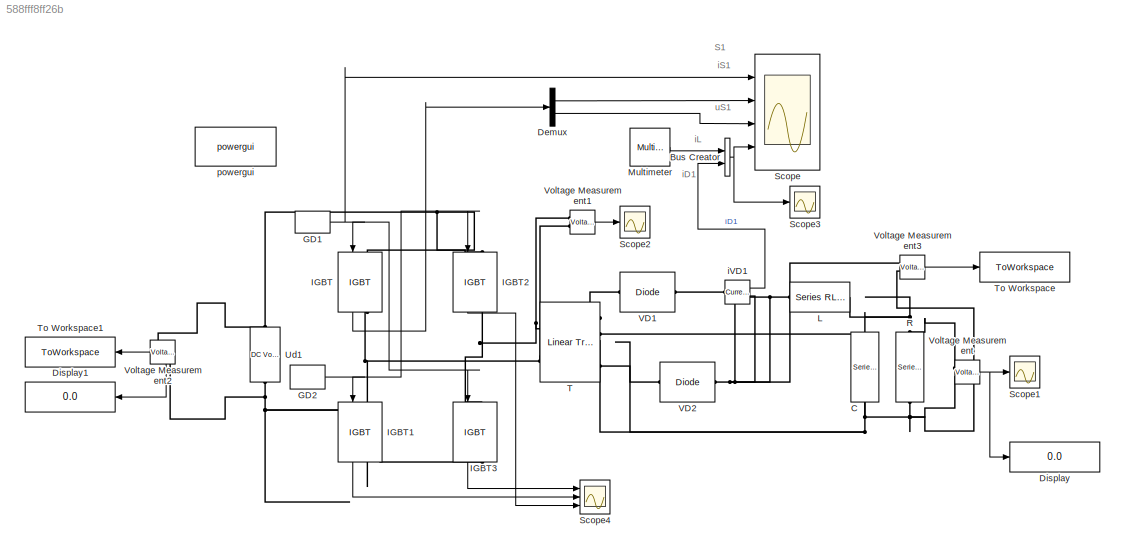
MODEL slx_588fff8ff26b
KIND model
CONFIG AbsTol = auto
CONFIG EnableMultiTasking = off
CONFIG FixedStep = auto
CONFIG MaxStep = auto
CONFIG MinStep = auto
CONFIG RelTol = 1e-3
CONFIG SampleTimeConstraint = Unconstrained
CONFIG Solver = VariableStepAuto
CONFIG SolverName = VariableStepAuto
CONFIG StartTime = 0.0
CONFIG StopTime = 10.0
BLOCK [BusCreator] Bus Creator
  DialogController = Simulink.DDGSource_Bus
  DisplayOption = bar
  InheritFromInputs = on
  Inputs = 2
  Ports = [2, 1]
BLOCK [Reference] C  REF=powerlib/Elements/Series RLC Branch
  Ports = [0, 0, 0, 0, 0, 1, 1]
  SourceBlock = powerlib/Elements/Series RLC Branch
  SourceProductBaseCode = PS
  SourceProductName = Simscape Electrical
  SourceType = Series RLC Branch
BLOCK [Demux] Demux
  DisplayOption = bar
  Outputs = 2
  Ports = [1, 2]
BLOCK [Display] Display
  Decimation = 1
  Ports = [1]
BLOCK [Display] Display1
  Decimation = 1
  Ports = [1]
BLOCK [DiscretePulseGenerator] GD1
  Period = 1e-5
  Ports = [0, 1]
  PulseType = Time based
  PulseWidth = tem1
BLOCK [DiscretePulseGenerator] GD2
  Period = 1e-5
  PhaseDelay = 5e-6
  Ports = [0, 1]
  PulseType = Time based
  PulseWidth = tem2
BLOCK [Reference] IGBT  REF=powerlib/Power
Electronics/IGBT
  Ports = [1, 1, 0, 0, 0, 1, 1]
  SourceBlock = powerlib/Power\nElectronics/IGBT
  SourceProductBaseCode = PS
  SourceProductName = Simscape Electrical
  SourceType = IGBT
BLOCK [Reference] IGBT1  REF=powerlib/Power
Electronics/IGBT
  Ports = [1, 1, 0, 0, 0, 1, 1]
  SourceBlock = powerlib/Power\nElectronics/IGBT
  SourceProductBaseCode = PS
  SourceProductName = Simscape Electrical
  SourceType = IGBT
BLOCK [Reference] IGBT2  REF=powerlib/Power
Electronics/IGBT
  Ports = [1, 1, 0, 0, 0, 1, 1]
  SourceBlock = powerlib/Power\nElectronics/IGBT
  SourceProductBaseCode = PS
  SourceProductName = Simscape Electrical
  SourceType = IGBT
BLOCK [Reference] IGBT3  REF=powerlib/Power
Electronics/IGBT
  Ports = [1, 1, 0, 0, 0, 1, 1]
  SourceBlock = powerlib/Power\nElectronics/IGBT
  SourceProductBaseCode = PS
  SourceProductName = Simscape Electrical
  SourceType = IGBT
BLOCK [Reference] L  REF=powerlib/Elements/Series RLC Branch
  Ports = [0, 0, 0, 0, 0, 1, 1]
  SourceBlock = powerlib/Elements/Series RLC Branch
  SourceProductBaseCode = PS
  SourceProductName = Simscape Electrical
  SourceType = Series RLC Branch
BLOCK [Reference] Multimeter  REF=powerlib/Measurements/Multimeter
  Ports = [0, 1]
  SourceBlock = powerlib/Measurements/Multimeter
  SourceProductBaseCode = PS
  SourceProductName = Simscape Electrical
  SourceType = MultimeterPSB
BLOCK [Reference] R  REF=powerlib/Elements/Series RLC Branch
  Ports = [0, 0, 0, 0, 0, 1, 1]
  SourceBlock = powerlib/Elements/Series RLC Branch
  SourceProductBaseCode = PS
  SourceProductName = Simscape Electrical
  SourceType = Series RLC Branch
BLOCK [Scope] Scope
  Floating = off
  NumInputPorts = 4
  Ports = [4]
  ScopeSpecificationString = Simulink.scopes.TimeScopeBlockCfg('CurrentConfiguration', extmgr.ConfigurationSet(extmgr.Configuration('Core','General UI',true,'FigureColor',[1 1 1]),extmgr.Configuration('Core','Source UI',true),extmgr.Configuration('Sources','WiredSimulink',true,'DataLoggingSaveFormat','StructureWithTime','DataLoggingDecimation','1','DataLoggingDecimateData',true,'SampleTime','1e-7','DataLogging',true,'DataLogg...<+4313ch>
BLOCK [Scope] Scope1
  Floating = off
  NumInputPorts = 1
  Ports = [1]
  ScopeSpecificationString = Simulink.scopes.TimeScopeBlockCfg('CurrentConfiguration', extmgr.ConfigurationSet(extmgr.Configuration('Core','General UI',true,'FigureColor',[1 1 1]),extmgr.Configuration('Core','Source UI',true),extmgr.Configuration('Sources','WiredSimulink',true,'DataLoggingVariableName','ScopeData3','DataLogging',true,'DataLoggingSaveFormat','StructureWithTime','SampleTime','1e-7'),extmgr.Configuration('Visual...<+1640ch>
BLOCK [Scope] Scope2
  Floating = off
  NumInputPorts = 1
  Ports = [1]
  ScopeSpecificationString = Simulink.scopes.TimeScopeBlockCfg('CurrentConfiguration', extmgr.ConfigurationSet(extmgr.Configuration('Core','General UI',true,'FigureColor',[1 1 1]),extmgr.Configuration('Core','Source UI',true),extmgr.Configuration('Sources','WiredSimulink',true,'SampleTime','1e-7','DataLoggingVariableName','ScopeData4'),extmgr.Configuration('Visuals','Time Domain',true,'SerializedDisplays',{struct('MinYLimReal...<+1623ch>
BLOCK [Scope] Scope3
  Floating = off
  NumInputPorts = 1
  Ports = [1]
  ScopeSpecificationString = Simulink.scopes.TimeScopeBlockCfg('CurrentConfiguration', extmgr.ConfigurationSet(extmgr.Configuration('Core','General UI',true,'FigureColor',[1 1 1]),extmgr.Configuration('Core','Source UI',true),extmgr.Configuration('Sources','WiredSimulink',true,'SampleTime','1e-7'),extmgr.Configuration('Visuals','Time Domain',true,'SerializedDisplays',{struct('MinYLimReal','0','MaxYLimReal','1','YLabelReal',''...<+1697ch>
BLOCK [Scope] Scope4
  Floating = off
  NumInputPorts = 3
  Ports = [3]
  ScopeSpecificationString = Simulink.scopes.TimeScopeBlockCfg('CurrentConfiguration', extmgr.ConfigurationSet(extmgr.Configuration('Core','General UI',true,'FigureColor',[1 1 1]),extmgr.Configuration('Core','Source UI',true),extmgr.Configuration('Sources','WiredSimulink',true,'SampleTime','1e-7','DataLoggingVariableName','ScopeData1'),extmgr.Configuration('Visuals','Time Domain',true,'SerializedDisplays',{struct('MinYLimReal...<+1736ch>
BLOCK [Reference] T  REF=powerlib/Elements/Linear Transformer
  Ports = [0, 0, 0, 0, 0, 2, 4]
  SourceBlock = powerlib/Elements/Linear Transformer
  SourceProductBaseCode = PS
  SourceProductName = Simscape Electrical
  SourceType = Linear Transformer
BLOCK [ToWorkspace] To Workspace
  FixptAsFi = on
  MaxDataPoints = inf
  Ports = [1]
  SampleTime = -1
  Save2DSignal = 2-D array (concatenate along first dimension)
  VariableName = Uo
BLOCK [ToWorkspace] To Workspace1
  FixptAsFi = on
  MaxDataPoints = inf
  Ports = [1]
  SampleTime = -1
  Save2DSignal = 2-D array (concatenate along first dimension)
  VariableName = Uin
BLOCK [Reference] Ud1  REF=powerlib/Electrical
Sources/DC Voltage Source
  Ports = [0, 0, 0, 0, 0, 1, 1]
  SourceBlock = powerlib/Electrical\nSources/DC Voltage Source
  SourceProductBaseCode = PS
  SourceProductName = Simscape Electrical
  SourceType = DC Voltage Source
BLOCK [Reference] VD1  REF=powerlib/Power
Electronics/Diode
  Ports = [0, 0, 0, 0, 0, 1, 1]
  SourceBlock = powerlib/Power\nElectronics/Diode
  SourceProductBaseCode = PS
  SourceProductName = Simscape Electrical
  SourceType = Diode
BLOCK [Reference] VD2  REF=powerlib/Power
Electronics/Diode
  Ports = [0, 0, 0, 0, 0, 1, 1]
  SourceBlock = powerlib/Power\nElectronics/Diode
  SourceProductBaseCode = PS
  SourceProductName = Simscape Electrical
  SourceType = Diode
BLOCK [Reference] Voltage Measurement  REF=powerlib/Measurements/Voltage Measurement
  Ports = [0, 1, 0, 0, 0, 2]
  SourceBlock = powerlib/Measurements/Voltage Measurement
  SourceProductBaseCode = PS
  SourceProductName = Simscape Electrical
  SourceType = Voltage Measurement
  UserDataPersistent = on
BLOCK [Reference] Voltage Measurement1  REF=powerlib/Measurements/Voltage Measurement
  Ports = [0, 1, 0, 0, 0, 2]
  SourceBlock = powerlib/Measurements/Voltage Measurement
  SourceProductBaseCode = PS
  SourceProductName = Simscape Electrical
  SourceType = Voltage Measurement
  UserDataPersistent = on
BLOCK [Reference] Voltage Measurement2  REF=powerlib/Measurements/Voltage Measurement
  Ports = [0, 1, 0, 0, 0, 2]
  SourceBlock = powerlib/Measurements/Voltage Measurement
  SourceProductBaseCode = PS
  SourceProductName = Simscape Electrical
  SourceType = Voltage Measurement
  UserDataPersistent = on
BLOCK [Reference] Voltage Measurement3  REF=powerlib/Measurements/Voltage Measurement
  Ports = [0, 1, 0, 0, 0, 2]
  SourceBlock = powerlib/Measurements/Voltage Measurement
  SourceProductBaseCode = PS
  SourceProductName = Simscape Electrical
  SourceType = Voltage Measurement
  UserDataPersistent = on
BLOCK [Reference] iVD1  REF=powerlib/Measurements/Current Measurement
  Ports = [0, 1, 0, 0, 0, 1, 1]
  SourceBlock = powerlib/Measurements/Current Measurement
  SourceProductBaseCode = PS
  SourceProductName = Simscape Electrical
  SourceType = Current Measurement
BLOCK [Reference] powergui  REF=powerlib/powergui
  Ports = []
  Priority = 1
  SourceBlock = powerlib/powergui
  SourceProductBaseCode = PS
  SourceProductName = Simscape Electrical
  SourceType = PSB option menu block
ANNOTATION (root): S1
ANNOTATION (root): iD1
ANNOTATION (root): iL
ANNOTATION (root): iS1
ANNOTATION (root): uS1
NET Bus Creator:1 -> Scope3:1, Scope:4
LINE Demux:1 -> Scope:2
LINE Demux:2 -> Scope:3
NET GD1:1 -> IGBT3:1, IGBT:1, Scope:1
NET GD2:1 -> IGBT1:1, IGBT2:1
LINE IGBT1:1 -> Scope4:2
LINE IGBT2:1 -> Scope4:3
LINE IGBT3:1 -> Scope4:1
LINE IGBT:1 -> Demux:1
LINE Multimeter:1 -> Bus Creator:1
LINE Voltage Measurement1:1 -> Scope2:1
NET Voltage Measurement2:1 -> Display1:1, To Workspace1:1
LINE Voltage Measurement3:1 -> To Workspace:1
NET Voltage Measurement:1 -> Display:1, Scope1:1
LINE iVD1:1 -> Bus Creator:2
PNET net1: C:LConn1 -- L:RConn1 -- R:LConn1 -- Voltage Measurement:LConn1
PNET net2: C:RConn1 -- R:RConn1 -- T:RConn2 -- T:RConn3 -- Voltage Measurement3:LConn2 -- Voltage Measurement:LConn2
PNET net3: IGBT1:LConn1 -- IGBT:RConn1 -- T:LConn2 -- Voltage Measurement1:LConn2
PNET net4: IGBT1:RConn1 -- IGBT3:RConn1 -- Ud1:LConn1 -- Voltage Measurement2:LConn2
PNET net5: IGBT2:LConn1 -- IGBT:LConn1 -- Ud1:RConn1 -- Voltage Measurement2:LConn1
PNET net6: IGBT2:RConn1 -- IGBT3:LConn1 -- T:LConn1 -- Voltage Measurement1:LConn1
PNET net7: L:LConn1 -- VD2:RConn1 -- Voltage Measurement3:LConn1 -- iVD1:RConn1
PLINE T:RConn1 -- VD1:LConn1
PLINE T:RConn4 -- VD2:LConn1
PLINE VD1:RConn1 -- iVD1:LConn1
note: NET lines group one-source signal fan-out (src -> all destinations, sorted); 1:1 wires keep LINE; PNET lines group multi-terminal physical nets as a canonical sorted terminal list (undirected conserving connections); 2-terminal nets keep the pairwise PLINE form
